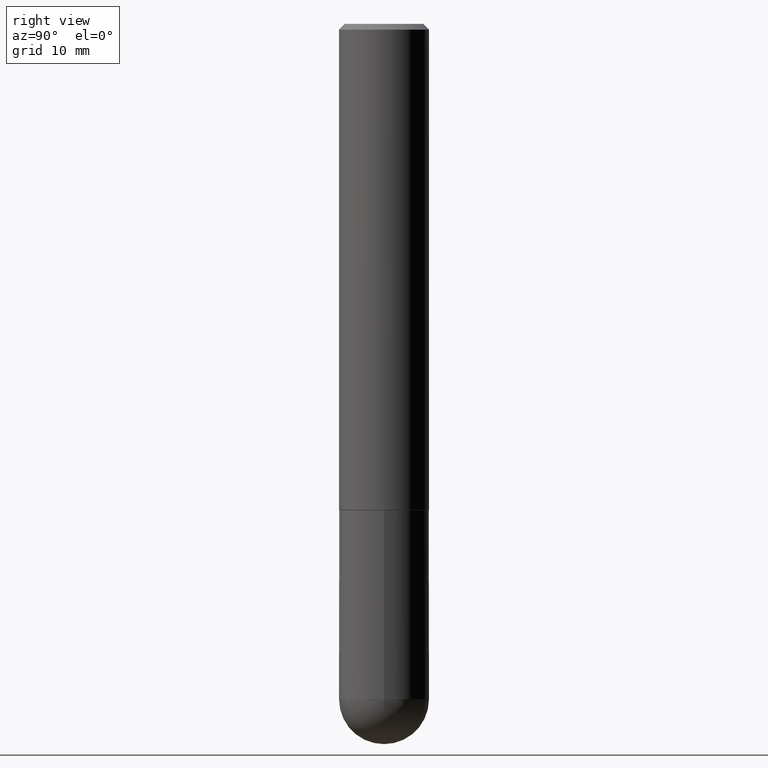
[diagram: clean part render]
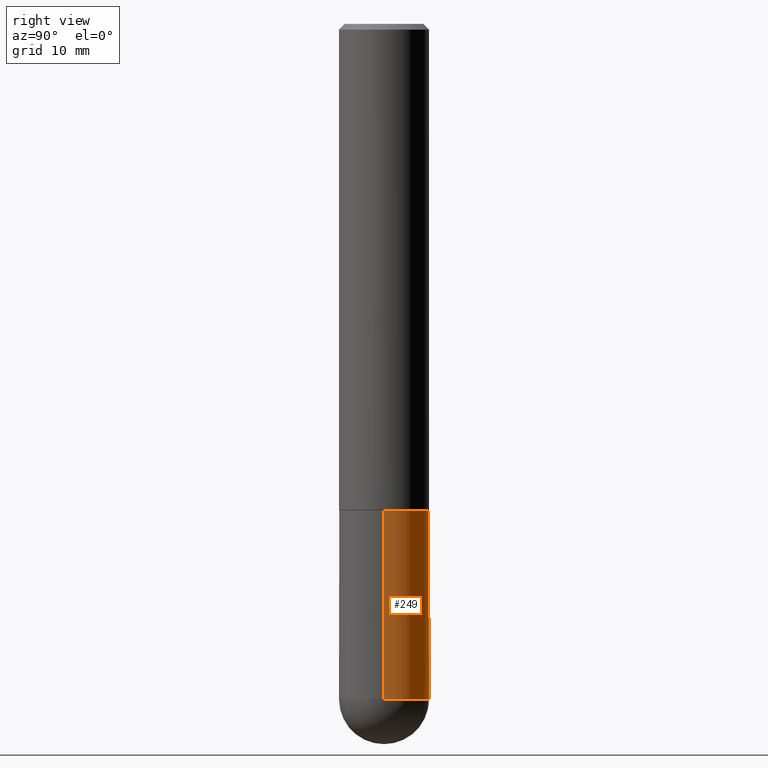
[diagram: same view with one face highlighted and labeled with its STEP entity id]
A machine part, right view. The second image highlights one B-rep face of the part: STEP entity #249.
In plain terms, the highlighted cylindrical surface (partial cylindrical patch) has radius 3.9688 mm, axis along (-0, 0, 1).
Its self-contained STEP definition (entity closure, byte-faithful):
#5 = CIRCLE ( 'NONE', #246, 0.1562500000000000000 ) ;
#9 = CIRCLE ( 'NONE', #314, 0.1562500000000000000 ) ;
#20 = DIRECTION ( 'NONE',  ( -2.445468806185136597E-29, 3.491481338843145583E-15, 1.000000000000000000 ) ) ;
#31 = VERTEX_POINT ( 'NONE', #355 ) ;
#33 = AXIS2_PLACEMENT_3D ( 'NONE', #251, #20, #173 ) ;
#44 = VECTOR ( 'NONE', #237, 39.37007874015748143 ) ;
#45 = ORIENTED_EDGE ( 'NONE', *, *, #342, .T. ) ;
#49 = EDGE_CURVE ( 'NONE', #183, #31, #5, .T. ) ;
#65 = EDGE_CURVE ( 'NONE', #31, #217, #296, .T. ) ;
#70 = DIRECTION ( 'NONE',  ( -2.445468806185136877E-29, 3.491481338843145188E-15, 1.000000000000000000 ) ) ;
#75 = CARTESIAN_POINT ( 'NONE',  ( 1.091087918388535577E-15, 0.1562499999999916733, -2.343750000000000444 ) ) ;
#81 = VECTOR ( 'NONE', #70, 39.37007874015748143 ) ;
#84 = DIRECTION ( 'NONE',  ( -2.445468806185136597E-29, 3.491481338843145583E-15, 1.000000000000000000 ) ) ;
#113 = DIRECTION ( 'NONE',  ( 1.000000000000000000, -6.982962677686269077E-15, 0.000000000000000000 ) ) ;
#117 = CARTESIAN_POINT ( 'NONE',  ( 0.000000000000000000, 0.000000000000000000, 0.000000000000000000 ) ) ;
#119 = EDGE_CURVE ( 'NONE', #370, #349, #227, .T. ) ;
#129 = DIRECTION ( 'NONE',  ( -2.445468806185136597E-29, 3.491481338843145583E-15, 1.000000000000000000 ) ) ;
#145 = AXIS2_PLACEMENT_3D ( 'NONE', #117, #152, #184 ) ;
#146 = ORIENTED_EDGE ( 'NONE', *, *, #405, .F. ) ;
#152 = DIRECTION ( 'NONE',  ( -2.445468806185136597E-29, 3.491481338843145583E-15, 1.000000000000000000 ) ) ;
#173 = DIRECTION ( 'NONE',  ( 1.000000000000000000, -6.982962677686262766E-15, 0.000000000000000000 ) ) ;
#183 = VERTEX_POINT ( 'NONE', #75 ) ;
#184 = DIRECTION ( 'NONE',  ( 1.000000000000000000, -6.982962677686266711E-15, 4.876176775795936353E-29 ) ) ;
#201 = DIRECTION ( 'NONE',  ( 1.000000000000000000, -6.982962677686262766E-15, 0.000000000000000000 ) ) ;
#217 = VERTEX_POINT ( 'NONE', #306 ) ;
#222 = CIRCLE ( 'NONE', #33, 0.1562500000000000000 ) ;
#227 = LINE ( 'NONE', #407, #44 ) ;
#237 = DIRECTION ( 'NONE',  ( -2.445468806185136877E-29, 3.491481338843145188E-15, 1.000000000000000000 ) ) ;
#246 = AXIS2_PLACEMENT_3D ( 'NONE', #323, #129, #201 ) ;
#247 = CYLINDRICAL_SURFACE ( 'NONE', #145, 0.1562500000000000000 ) ;
#249 = ADVANCED_FACE ( 'NONE', ( #293 ), #247, .T. ) ;
#250 = CARTESIAN_POINT ( 'NONE',  ( 4.127951344840510809E-29, -5.893620499967230340E-15, -1.688000000000000167 ) ) ;
#251 = CARTESIAN_POINT ( 'NONE',  ( 5.731567514496413899E-29, -8.183159387913622595E-15, -2.343750000000000000 ) ) ;
#274 = CARTESIAN_POINT ( 'NONE',  ( 0.1562500000000000000, -8.129477862328905246E-15, -2.343750000000000000 ) ) ;
#276 = CARTESIAN_POINT ( 'NONE',  ( 0.1562500000000000000, -6.984708418355709513E-15, -1.688000000000000167 ) ) ;
#293 = FACE_OUTER_BOUND ( 'NONE', #411, .T. ) ;
#296 = LINE ( 'NONE', #412, #81 ) ;
#306 = CARTESIAN_POINT ( 'NONE',  ( -0.1562500000000000000, -5.928166919315269532E-15, -1.688000000000000167 ) ) ;
#314 = AXIS2_PLACEMENT_3D ( 'NONE', #250, #84, #113 ) ;
#323 = CARTESIAN_POINT ( 'NONE',  ( 5.731567514496413899E-29, -8.183159387913622595E-15, -2.343750000000000000 ) ) ;
#327 = ORIENTED_EDGE ( 'NONE', *, *, #49, .T. ) ;
#333 = ORIENTED_EDGE ( 'NONE', *, *, #65, .T. ) ;
#335 = ORIENTED_EDGE ( 'NONE', *, *, #119, .F. ) ;
#342 = EDGE_CURVE ( 'NONE', #370, #183, #222, .T. ) ;
#349 = VERTEX_POINT ( 'NONE', #276 ) ;
#355 = CARTESIAN_POINT ( 'NONE',  ( -0.1562500000000000000, -5.928166919315270321E-15, -2.343750000000000000 ) ) ;
#370 = VERTEX_POINT ( 'NONE', #274 ) ;
#405 = EDGE_CURVE ( 'NONE', #349, #217, #9, .T. ) ;
#407 = CARTESIAN_POINT ( 'NONE',  ( 0.1562500000000000000, -1.091087918388479174E-15, 7.619026212181150377E-30 ) ) ;
#411 = EDGE_LOOP ( 'NONE', ( #327, #333, #146, #335, #45 ) ) ;
#412 = CARTESIAN_POINT ( 'NONE',  ( -0.1562500000000000000, 1.110223024625156540E-15, -7.685836078523291160E-30 ) ) ;